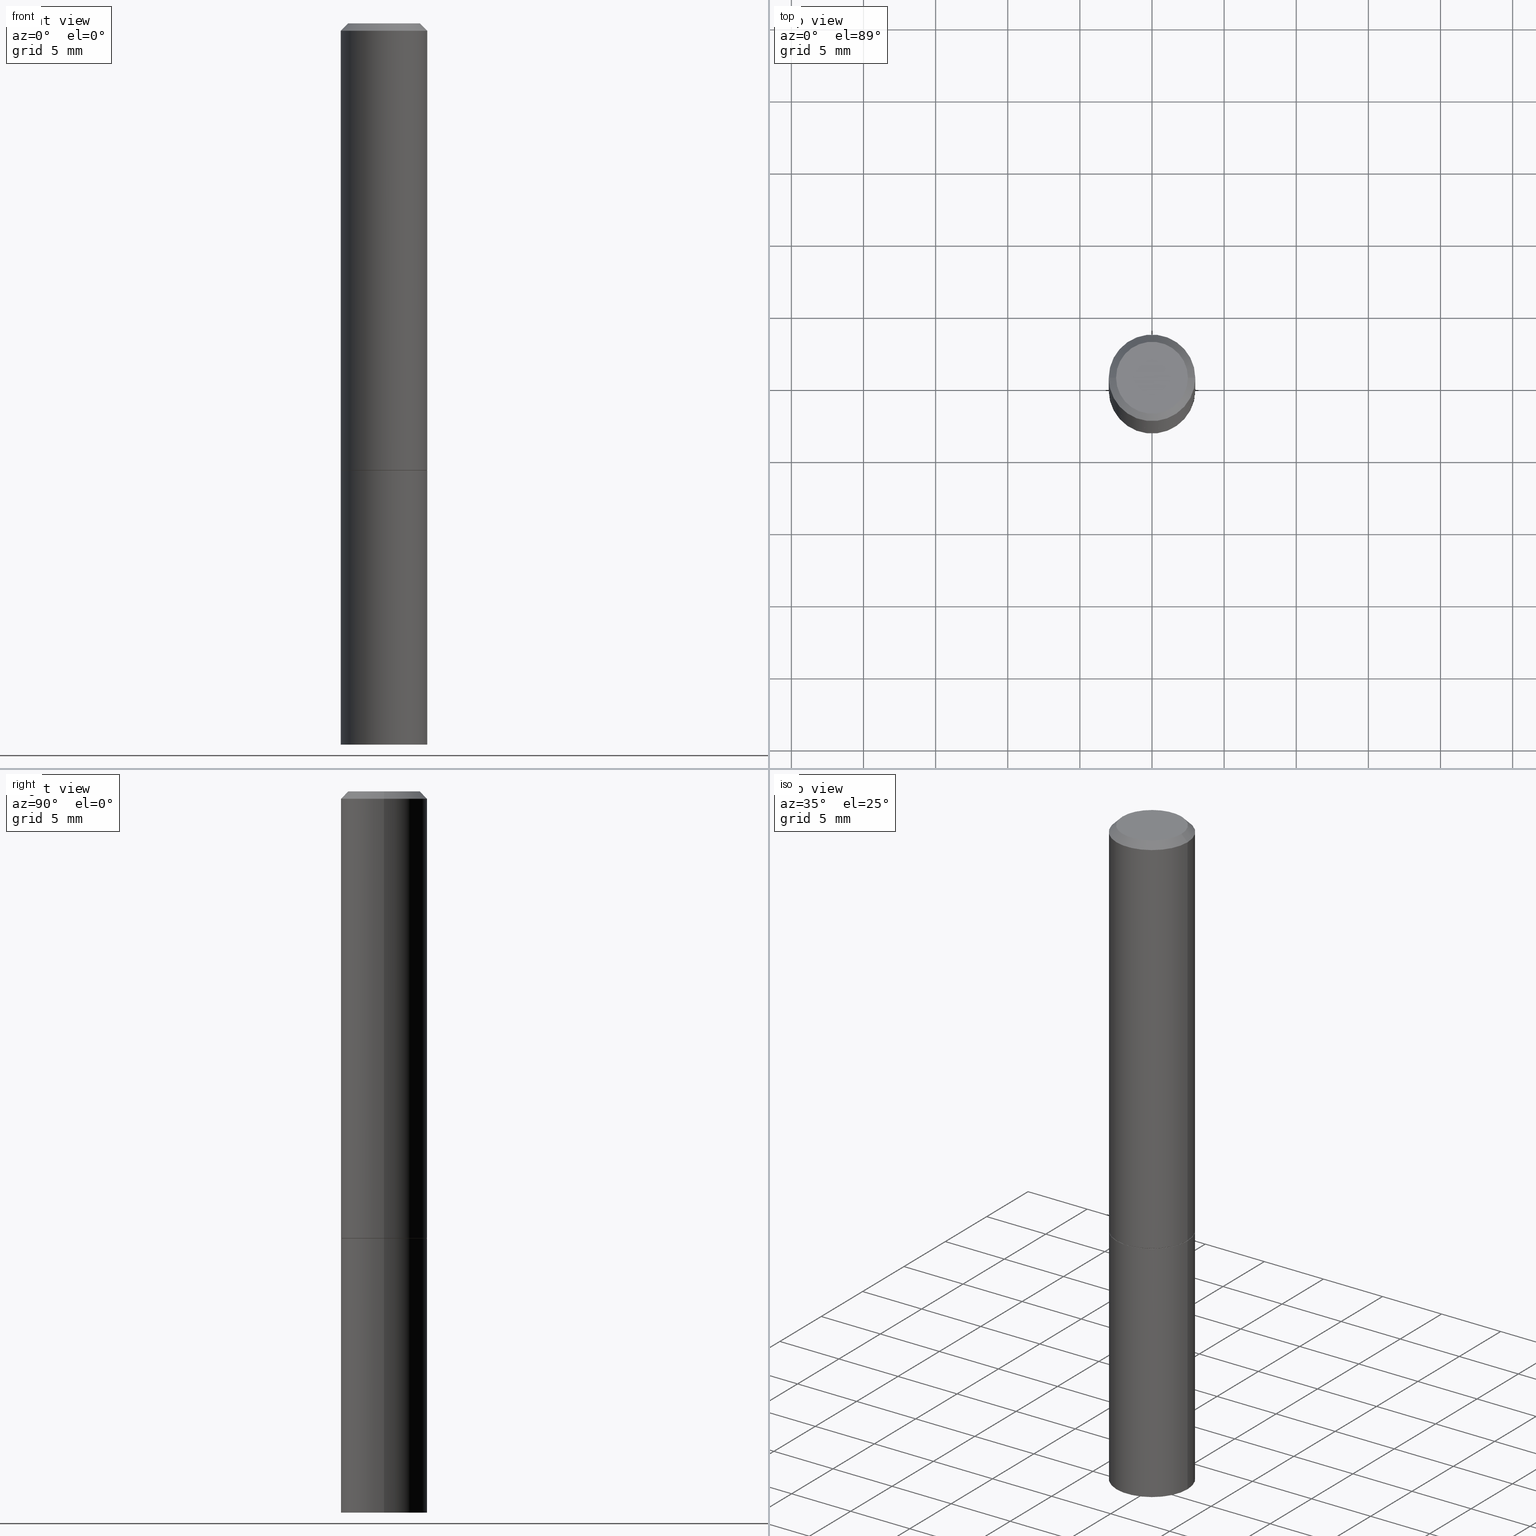
[diagram: canonical four-view strip — front | top / right | iso, engineering-drawing reading convention]
A machine part, canonical four-view strip (front | top / right | iso — engineering-drawing reading convention). The complete STEP part file that produces these views, byte-faithful:
ISO-10303-21;
HEADER;
FILE_DESCRIPTION (( 'STEP AP203' ),
    '1' );
FILE_NAME ('48637.STEP',
    '2024-02-28T12:44:47',
    ( '' ),
    ( '' ),
    'SwSTEP 2.0',
    'SolidWorks 2023',
    '' );
FILE_SCHEMA (( 'CONFIG_CONTROL_DESIGN' ));
ENDSEC;

DATA;
#1 = ORIENTED_EDGE ( 'NONE', *, *, #267, .F. ) ;
#2 = AXIS2_PLACEMENT_3D ( 'NONE', #141, #260, #59 ) ;
#3 = EDGE_CURVE ( 'NONE', #21, #10, #363, .T. ) ;
#4 = DIRECTION ( 'NONE',  ( 1.000000000000000000, -6.982962677686265133E-15, 0.000000000000000000 ) ) ;
#5 = EDGE_CURVE ( 'NONE', #256, #266, #314, .T. ) ;
#6 = AXIS2_PLACEMENT_3D ( 'NONE', #159, #365, #105 ) ;
#7 = LOCAL_TIME ( 7, 44, 47.00000000000000000, #345 ) ;
#8 = ORIENTED_EDGE ( 'NONE', *, *, #191, .F. ) ;
#9 = DATE_AND_TIME ( #97, #202 ) ;
#10 = VERTEX_POINT ( 'NONE', #301 ) ;
#11 = COORDINATED_UNIVERSAL_TIME_OFFSET ( 5, 0, .BEHIND. ) ;
#12 = LINE ( 'NONE', #241, #104 ) ;
#13 = ORIENTED_EDGE ( 'NONE', *, *, #193, .T. ) ;
#14 = CARTESIAN_POINT ( 'NONE',  ( 6.850286386810215676E-16, 0.09809999999999984011, -3.403800630954618031E-16 ) ) ;
#15 = AXIS2_PLACEMENT_3D ( 'NONE', #204, #240, #350 ) ;
#16 = DIRECTION ( 'NONE',  ( -2.445468806185136877E-29, 3.491481338843145188E-15, 1.000000000000000000 ) ) ;
#17 = CARTESIAN_POINT ( 'NONE',  ( -0.1180999999999999966, -4.728016023852716776E-15, -1.220499999999999918 ) ) ;
#18 = ORIENTED_EDGE ( 'NONE', *, *, #22, .F. ) ;
#19 = CARTESIAN_POINT ( 'NONE',  ( -0.1170999999999999958, -3.424008976134759437E-15, -1.220499999999999918 ) ) ;
#20 = CARTESIAN_POINT ( 'NONE',  ( 0.000000000000000000, 0.000000000000000000, 0.000000000000000000 ) ) ;
#21 = VERTEX_POINT ( 'NONE', #19 ) ;
#22 = EDGE_CURVE ( 'NONE', #298, #268, #299, .T. ) ;
#23 = CARTESIAN_POINT ( 'NONE',  ( 0.1180999999999998301, -8.800544403136797528E-16, -0.02000000000000003511 ) ) ;
#24 = FACE_OUTER_BOUND ( 'NONE', #226, .T. ) ;
#25 = CARTESIAN_POINT ( 'NONE',  ( 0.1180999999999999966, -7.697668907747479970E-15, -1.968500000000000139 ) ) ;
#26 = ORIENTED_EDGE ( 'NONE', *, *, #309, .F. ) ;
#27 = CYLINDRICAL_SURFACE ( 'NONE', #230, 0.1180999999999999966 ) ;
#28 = ORIENTED_EDGE ( 'NONE', *, *, #232, .T. ) ;
#29 = FACE_OUTER_BOUND ( 'NONE', #69, .T. ) ;
#30 = APPROVAL ( #360, 'UNSPECIFIED' ) ;
#31 = LOCAL_TIME ( 7, 44, 47.00000000000000000, #262 ) ;
#32 = ORIENTED_EDGE ( 'NONE', *, *, #193, .F. ) ;
#33 = EDGE_CURVE ( 'NONE', #287, #190, #247, .T. ) ;
#34 = ORIENTED_EDGE ( 'NONE', *, *, #3, .F. ) ;
#35 = PRODUCT_RELATED_PRODUCT_CATEGORY ( 'detail', '', ( #270 ) ) ;
#36 = DIRECTION ( 'NONE',  ( -2.445468806185136597E-29, 3.491481338843145583E-15, 1.000000000000000000 ) ) ;
#37 = FACE_OUTER_BOUND ( 'NONE', #79, .T. ) ;
#38 = DIRECTION ( 'NONE',  ( 1.000000000000000000, -6.982962677686266711E-15, 0.000000000000000000 ) ) ;
#39 = CC_DESIGN_DATE_AND_TIME_ASSIGNMENT ( #236, #116, ( #89 ) ) ;
#40 = PRODUCT_DEFINITION_SHAPE ( 'NONE', 'NONE',  #89 ) ;
#41 = FACE_OUTER_BOUND ( 'NONE', #196, .T. ) ;
#42 = CARTESIAN_POINT ( 'NONE',  ( 0.09809999999999984011, -7.765346469475328709E-16, 4.268512490105521927E-18 ) ) ;
#43 = VECTOR ( 'NONE', #55, 39.37007874015748143 ) ;
#44 = CONICAL_SURFACE ( 'NONE', #135, 0.1170999999999999958, 0.7853981633975507526 ) ;
#45 = DIRECTION ( 'NONE',  ( -1.000000000000000000, 6.982962677686265922E-15, -4.876176775795935793E-29 ) ) ;
#46 = ORIENTED_EDGE ( 'NONE', *, *, #254, .F. ) ;
#47 = DIRECTION ( 'NONE',  ( -2.445468806185136877E-29, 3.491481338843145188E-15, 1.000000000000000000 ) ) ;
#48 = CARTESIAN_POINT ( 'NONE',  ( 4.890937612370281041E-31, -6.982962677686302702E-17, -0.02000000000000003511 ) ) ;
#49 = SECURITY_CLASSIFICATION_LEVEL ( 'unclassified' ) ;
#50 = EDGE_CURVE ( 'NONE', #10, #21, #110, .T. ) ;
#51 = LINE ( 'NONE', #153, #43 ) ;
#52 = PRODUCT_DEFINITION_FORMATION_WITH_SPECIFIED_SOURCE ( 'ANY', '', #270, .NOT_KNOWN. ) ;
#53 = CARTESIAN_POINT ( 'NONE',  ( 2.984694677948959472E-29, -4.261352974058059028E-15, -1.220499999999999918 ) ) ;
#54 = ADVANCED_FACE ( 'NONE', ( #24 ), #273, .F. ) ;
#55 = DIRECTION ( 'NONE',  ( 0.7071067811866199593, -2.468850131083015945E-15, 0.7071067811864750752 ) ) ;
#56 = DIRECTION ( 'NONE',  ( -0.7071067811865466846, 2.468850131082247989E-15, -0.7071067811865483499 ) ) ;
#57 = CC_DESIGN_APPROVAL ( #30, ( #89 ) ) ;
#58 = VERTEX_POINT ( 'NONE', #42 ) ;
#59 = DIRECTION ( 'NONE',  ( 1.000000000000000000, -6.982962677686269077E-15, 0.000000000000000000 ) ) ;
#60 = CALENDAR_DATE ( 2024, 28, 2 ) ;
#61 = DIMENSIONAL_EXPONENTS ( 1.000000000000000000, 0.000000000000000000, 0.000000000000000000, 0.000000000000000000, 0.000000000000000000, 0.000000000000000000, 0.000000000000000000 ) ;
#62 = ORIENTED_EDGE ( 'NONE', *, *, #309, .T. ) ;
#63 = ORIENTED_EDGE ( 'NONE', *, *, #267, .T. ) ;
#64 = ADVANCED_FACE ( 'NONE', ( #148 ), #98, .T. ) ;
#65 = EDGE_LOOP ( 'NONE', ( #320, #62, #200, #32 ) ) ;
#66 = ORIENTED_EDGE ( 'NONE', *, *, #319, .T. ) ;
#67 = LINE ( 'NONE', #102, #285 ) ;
#68 = CARTESIAN_POINT ( 'NONE',  ( 0.1180999999999999966, -5.086040866292807290E-15, -1.220499999999999918 ) ) ;
#69 = EDGE_LOOP ( 'NONE', ( #1, #166, #223, #46 ) ) ;
#70 = EDGE_LOOP ( 'NONE', ( #259, #63, #18, #180 ) ) ;
#71 = DIRECTION ( 'NONE',  ( 1.000000000000000000, -6.982962677686265133E-15, 0.000000000000000000 ) ) ;
#72 = DIRECTION ( 'NONE',  ( 1.000000000000000000, -6.982962677686266711E-15, 4.876176775795935793E-29 ) ) ;
#73 = CARTESIAN_POINT ( 'NONE',  ( 0.1180999999999999966, -5.082549384953964283E-15, -1.219500000000000028 ) ) ;
#74 = PERSON_AND_ORGANIZATION ( #194, #177 ) ;
#75 = DIRECTION ( 'NONE',  ( 2.438088387897960049E-29, -3.491481338843145188E-15, -1.000000000000000000 ) ) ;
#76 = VECTOR ( 'NONE', #302, 39.37007874015748143 ) ;
#77 = EDGE_CURVE ( 'NONE', #256, #138, #184, .T. ) ;
#78 = COORDINATED_UNIVERSAL_TIME_OFFSET ( 5, 0, .BEHIND. ) ;
#79 = EDGE_LOOP ( 'NONE', ( #151, #323, #317, #13 ) ) ;
#80 = AXIS2_PLACEMENT_3D ( 'NONE', #361, #359, #45 ) ;
#81 = APPROVAL_PERSON_ORGANIZATION ( #74, #342, #308 ) ;
#82 = MANIFOLD_SOLID_BREP ( 'Body-Move/Copy2[2]', #295 ) ;
#83 = DIRECTION ( 'NONE',  ( 1.000000000000000000, -6.982962677686265922E-15, 4.876176775795935793E-29 ) ) ;
#84 = AXIS2_PLACEMENT_3D ( 'NONE', #152, #334, #72 ) ;
#85 = ORIENTED_EDGE ( 'NONE', *, *, #5, .F. ) ;
#86 = MANIFOLD_SOLID_BREP ( 'Body-Move/Copy2[1]', #103 ) ;
#87 = CYLINDRICAL_SURFACE ( 'NONE', #15, 0.1180999999999999966 ) ;
#88 = APPROVAL_ROLE ( '' ) ;
#89 = PRODUCT_DEFINITION ( 'UNKNOWN', '', #52, #313 ) ;
#90 = DIRECTION ( 'NONE',  ( -2.445468806185136597E-29, 3.491481338843145583E-15, 1.000000000000000000 ) ) ;
#91 = CIRCLE ( 'NONE', #351, 0.09809999999999984011 ) ;
#92 = DIRECTION ( 'NONE',  ( -2.445468806185136877E-29, 3.491481338843145188E-15, 1.000000000000000000 ) ) ;
#93 = CARTESIAN_POINT ( 'NONE',  ( 2.984694677948958911E-29, -4.261352974058059028E-15, -1.220499999999999918 ) ) ;
#94 = EDGE_CURVE ( 'NONE', #138, #113, #134, .T. ) ;
#95 = APPLICATION_PROTOCOL_DEFINITION ( 'international standard', 'config_control_design', 1994, #252 ) ;
#96 = DIRECTION ( 'NONE',  ( -2.445468806185136597E-29, 3.491481338843145583E-15, 1.000000000000000000 ) ) ;
#97 = CALENDAR_DATE ( 2024, 28, 2 ) ;
#98 = CYLINDRICAL_SURFACE ( 'NONE', #84, 0.1180999999999999134 ) ;
#99 = ORIENTED_EDGE ( 'NONE', *, *, #50, .F. ) ;
#100 = CC_DESIGN_PERSON_AND_ORGANIZATION_ASSIGNMENT ( #293, #364, ( #89 ) ) ;
#101 = ADVANCED_FACE ( 'NONE', ( #37 ), #322, .T. ) ;
#102 = CARTESIAN_POINT ( 'NONE',  ( -0.1180999999999999134, 8.391509709326777040E-16, -5.809262341591039580E-30 ) ) ;
#103 = CLOSED_SHELL ( 'NONE', ( #222, #326, #54, #344 ) ) ;
#104 = VECTOR ( 'NONE', #92, 39.37007874015748143 ) ;
#105 = DIRECTION ( 'NONE',  ( 1.000000000000000000, -6.982962677686266711E-15, 0.000000000000000000 ) ) ;
#106 = DIRECTION ( 'NONE',  ( 1.000000000000000000, -6.982962677686266711E-15, 4.876195163481339890E-29 ) ) ;
#107 = ADVANCED_FACE ( 'NONE', ( #125 ), #167, .T. ) ;
#108 = ORIENTED_EDGE ( 'NONE', *, *, #311, .F. ) ;
#109 = CARTESIAN_POINT ( 'NONE',  ( -0.1180999999999998301, 7.548582654578837811E-16, -0.02000000000000003511 ) ) ;
#110 = CIRCLE ( 'NONE', #205, 0.1170999999999999958 ) ;
#111 = AXIS2_PLACEMENT_3D ( 'NONE', #248, #130, #219 ) ;
#112 = EDGE_LOOP ( 'NONE', ( #354, #66 ) ) ;
#113 = VERTEX_POINT ( 'NONE', #187 ) ;
#114 = FACE_OUTER_BOUND ( 'NONE', #139, .T. ) ;
#115 = ORIENTED_EDGE ( 'NONE', *, *, #22, .T. ) ;
#116 = DATE_TIME_ROLE ( 'creation_date' ) ;
#117 = APPROVAL ( #189, 'UNSPECIFIED' ) ;
#118 = ADVANCED_BREP_SHAPE_REPRESENTATION ( '48637', ( #86, #82, #324 ), #156 ) ;
#119 = DIRECTION ( 'NONE',  ( 2.445468806185136597E-29, -3.491481338843145583E-15, -1.000000000000000000 ) ) ;
#120 = SHAPE_DEFINITION_REPRESENTATION ( #40, #118 ) ;
#121 = CARTESIAN_POINT ( 'NONE',  ( 0.1180999999999999966, -8.246878922347480654E-16, 5.758764772215000440E-30 ) ) ;
#122 = AXIS2_PLACEMENT_3D ( 'NONE', #176, #90, #207 ) ;
#123 = VECTOR ( 'NONE', #56, 39.37007874015748143 ) ;
#124 = DIRECTION ( 'NONE',  ( 2.438088387897960049E-29, -3.491481338843145188E-15, -1.000000000000000000 ) ) ;
#125 = FACE_OUTER_BOUND ( 'NONE', #349, .T. ) ;
#126 = DIRECTION ( 'NONE',  ( 0.7071067811865466846, -7.319954787623252890E-15, -0.7071067811865483499 ) ) ;
#127 = AXIS2_PLACEMENT_3D ( 'NONE', #358, #333, #213 ) ;
#128 = DIRECTION ( 'NONE',  ( 0.000000000000000000, 0.000000000000000000, 1.000000000000000000 ) ) ;
#129 = CC_DESIGN_SECURITY_CLASSIFICATION ( #258, ( #52 ) ) ;
#130 = DIRECTION ( 'NONE',  ( -2.445468806185136597E-29, 3.491481338843145583E-15, 1.000000000000000000 ) ) ;
#131 = CARTESIAN_POINT ( 'NONE',  ( 4.890937612370281041E-31, -6.982962677686302702E-17, -0.02000000000000003511 ) ) ;
#132 = CALENDAR_DATE ( 2024, 28, 2 ) ;
#133 = ORIENTED_EDGE ( 'NONE', *, *, #261, .F. ) ;
#134 = CIRCLE ( 'NONE', #265, 0.1180999999999998301 ) ;
#135 = AXIS2_PLACEMENT_3D ( 'NONE', #343, #36, #290 ) ;
#136 = APPROVAL_DATE_TIME ( #312, #342 ) ;
#137 = ORIENTED_EDGE ( 'NONE', *, *, #319, .F. ) ;
#138 = VERTEX_POINT ( 'NONE', #321 ) ;
#139 = EDGE_LOOP ( 'NONE', ( #306, #163, #85, #8 ) ) ;
#140 = CARTESIAN_POINT ( 'NONE',  ( 2.982249209142773869E-29, -4.257861492719216809E-15, -1.219500000000000028 ) ) ;
#141 = CARTESIAN_POINT ( 'NONE',  ( 2.984694677948958911E-29, -4.261352974058059028E-15, -1.220499999999999918 ) ) ;
#142 = ADVANCED_FACE ( 'NONE', ( #41 ), #300, .T. ) ;
#143 = DIRECTION ( 'NONE',  ( -2.445468806185136597E-29, 3.491481338843145583E-15, 1.000000000000000000 ) ) ;
#144 =( NAMED_UNIT ( * ) SI_UNIT ( $, .STERADIAN. ) SOLID_ANGLE_UNIT ( ) );
#145 = LOCAL_TIME ( 7, 44, 47.00000000000000000, #355 ) ;
#146 = VECTOR ( 'NONE', #188, 39.37007874015748143 ) ;
#147 = PERSON_AND_ORGANIZATION_ROLE ( 'design_owner' ) ;
#148 = FACE_OUTER_BOUND ( 'NONE', #65, .T. ) ;
#149 = AXIS2_PLACEMENT_3D ( 'NONE', #158, #75, #160 ) ;
#150 = EDGE_LOOP ( 'NONE', ( #250, #291 ) ) ;
#151 = ORIENTED_EDGE ( 'NONE', *, *, #172, .F. ) ;
#152 = CARTESIAN_POINT ( 'NONE',  ( 0.000000000000000000, 0.000000000000000000, 0.000000000000000000 ) ) ;
#153 = CARTESIAN_POINT ( 'NONE',  ( 0.1170999999999999958, -5.079057903615120487E-15, -1.220499999999999918 ) ) ;
#154 = VECTOR ( 'NONE', #126, 39.37007874015748143 ) ;
#155 = CC_DESIGN_PERSON_AND_ORGANIZATION_ASSIGNMENT ( #157, #147, ( #270 ) ) ;
#156 =( GEOMETRIC_REPRESENTATION_CONTEXT ( 3 ) GLOBAL_UNCERTAINTY_ASSIGNED_CONTEXT ( ( #231 ) ) GLOBAL_UNIT_ASSIGNED_CONTEXT ( ( #307, #289, #144 ) ) REPRESENTATION_CONTEXT ( 'NONE', 'WORKASPACE' ) );
#157 = PERSON_AND_ORGANIZATION ( #194, #177 ) ;
#158 = CARTESIAN_POINT ( 'NONE',  ( 8.246878922347960873E-16, 0.1180999999999931133, -1.968500000000000583 ) ) ;
#159 = CARTESIAN_POINT ( 'NONE',  ( 4.890937612370281041E-31, -6.982962677686302702E-17, -0.02000000000000003511 ) ) ;
#160 = DIRECTION ( 'NONE',  ( -1.000000000000000000, 6.982962677686265922E-15, -4.876176775795935793E-29 ) ) ;
#161 = DIRECTION ( 'NONE',  ( -2.445468806185136597E-29, 3.491481338843145583E-15, 1.000000000000000000 ) ) ;
#162 = DIRECTION ( 'NONE',  ( -2.445468806185136597E-29, 3.491481338843145583E-15, 1.000000000000000000 ) ) ;
#163 = ORIENTED_EDGE ( 'NONE', *, *, #261, .T. ) ;
#164 = PLANE ( 'NONE',  #347 ) ;
#165 = EDGE_CURVE ( 'NONE', #190, #298, #297, .T. ) ;
#166 = ORIENTED_EDGE ( 'NONE', *, *, #33, .T. ) ;
#167 = CONICAL_SURFACE ( 'NONE', #127, 0.1180999999999998301, 0.7853981633974471688 ) ;
#168 = ADVANCED_FACE ( 'NONE', ( #244 ), #175, .T. ) ;
#169 = CARTESIAN_POINT ( 'NONE',  ( 2.982249209142773869E-29, -4.257861492719216809E-15, -1.219500000000000028 ) ) ;
#170 = PERSON_AND_ORGANIZATION ( #194, #177 ) ;
#171 = CARTESIAN_POINT ( 'NONE',  ( -0.1180999999999999966, -4.728016023852716776E-15, -1.968500000000000139 ) ) ;
#172 = EDGE_CURVE ( 'NONE', #58, #138, #336, .T. ) ;
#173 = DIRECTION ( 'NONE',  ( -2.438088387897960049E-29, 3.491481338843145188E-15, 1.000000000000000000 ) ) ;
#174 = LENGTH_MEASURE_WITH_UNIT ( LENGTH_MEASURE( 0.02539999999999999897 ), #224 );
#175 = CONICAL_SURFACE ( 'NONE', #228, 0.1170999999999999958, 0.7853981633975507526 ) ;
#176 = CARTESIAN_POINT ( 'NONE',  ( 0.000000000000000000, 0.000000000000000000, 0.000000000000000000 ) ) ;
#177 = ORGANIZATION ( 'UNSPECIFIED', 'UNSPECIFIED', '' ) ;
#178 = CC_DESIGN_PERSON_AND_ORGANIZATION_ASSIGNMENT ( #246, #362, ( #52 ) ) ;
#179 = DIRECTION ( 'NONE',  ( 1.000000000000000000, -6.982962677686269077E-15, 0.000000000000000000 ) ) ;
#180 = ORIENTED_EDGE ( 'NONE', *, *, #165, .F. ) ;
#181 = CC_DESIGN_DATE_AND_TIME_ASSIGNMENT ( #9, #303, ( #258 ) ) ;
#182 = AXIS2_PLACEMENT_3D ( 'NONE', #169, #264, #4 ) ;
#183 = PERSON_AND_ORGANIZATION ( #194, #177 ) ;
#184 = LINE ( 'NONE', #277, #146 ) ;
#185 = APPROVAL_PERSON_ORGANIZATION ( #216, #117, #88 ) ;
#186 = CALENDAR_DATE ( 2024, 28, 2 ) ;
#187 = CARTESIAN_POINT ( 'NONE',  ( -0.1180999999999998301, 7.548582654578837811E-16, -0.02000000000000003511 ) ) ;
#188 = DIRECTION ( 'NONE',  ( -2.445468806185136877E-29, 3.491481338843145188E-15, 1.000000000000000000 ) ) ;
#189 = APPROVAL_STATUS ( 'not_yet_approved' ) ;
#190 = VERTEX_POINT ( 'NONE', #25 ) ;
#191 = EDGE_CURVE ( 'NONE', #10, #256, #51, .T. ) ;
#192 = DIRECTION ( 'NONE',  ( -2.445468806185136597E-29, 3.491481338843145583E-15, 1.000000000000000000 ) ) ;
#193 = EDGE_CURVE ( 'NONE', #113, #138, #220, .T. ) ;
#194 = PERSON ( 'UNSPECIFIED', 'UNSPECIFIED', 'UNSPECIFIED', ('UNSPECIFIED'), ('UNSPECIFIED'), ('UNSPECIFIED') ) ;
#195 = EDGE_CURVE ( 'NONE', #296, #58, #91, .T. ) ;
#196 = EDGE_LOOP ( 'NONE', ( #276, #28, #332, #356 ) ) ;
#197 = VECTOR ( 'NONE', #16, 39.37007874015748143 ) ;
#198 = CARTESIAN_POINT ( 'NONE',  ( -1.043851414335219820E-46, 1.490343170380447200E-32, 4.268512490100411279E-18 ) ) ;
#199 = AXIS2_PLACEMENT_3D ( 'NONE', #198, #162, #340 ) ;
#200 = ORIENTED_EDGE ( 'NONE', *, *, #77, .T. ) ;
#201 = DIRECTION ( 'NONE',  ( -1.000000000000000000, 6.982962677686265922E-15, -4.876176775795935793E-29 ) ) ;
#202 = LOCAL_TIME ( 7, 44, 47.00000000000000000, #11 ) ;
#203 = DATE_AND_TIME ( #60, #7 ) ;
#204 = CARTESIAN_POINT ( 'NONE',  ( 0.000000000000000000, 0.000000000000000000, 0.000000000000000000 ) ) ;
#205 = AXIS2_PLACEMENT_3D ( 'NONE', #93, #96, #179 ) ;
#206 = LOCAL_TIME ( 7, 44, 47.00000000000000000, #78 ) ;
#207 = DIRECTION ( 'NONE',  ( 1.000000000000000000, -6.982962677686266711E-15, 4.876176775795935793E-29 ) ) ;
#208 = APPLICATION_CONTEXT ( 'configuration controlled 3d designs of mechanical parts and assemblies' ) ;
#209 = CIRCLE ( 'NONE', #111, 0.1180999999999999966 ) ;
#210 = FACE_OUTER_BOUND ( 'NONE', #112, .T. ) ;
#211 = CARTESIAN_POINT ( 'NONE',  ( 4.813905344975441835E-29, -6.872981015512731707E-15, -1.968500000000000139 ) ) ;
#212 = DIRECTION ( 'NONE',  ( -2.445468806185136597E-29, 3.491481338843145583E-15, 1.000000000000000000 ) ) ;
#213 = DIRECTION ( 'NONE',  ( -1.000000000000000000, 6.982962677686266711E-15, 0.000000000000000000 ) ) ;
#214 = CARTESIAN_POINT ( 'NONE',  ( 2.984694677948959472E-29, -4.261352974058059028E-15, -1.220499999999999918 ) ) ;
#215 = PERSON_AND_ORGANIZATION_ROLE ( 'classification_officer' ) ;
#216 = PERSON_AND_ORGANIZATION ( #194, #177 ) ;
#217 = ADVANCED_FACE ( 'NONE', ( #227 ), #164, .F. ) ;
#218 = DIRECTION ( 'NONE',  ( -2.445468806185136597E-29, 3.491481338843145583E-15, 1.000000000000000000 ) ) ;
#219 = DIRECTION ( 'NONE',  ( 1.000000000000000000, -6.982962677686265133E-15, 0.000000000000000000 ) ) ;
#220 = CIRCLE ( 'NONE', #6, 0.1180999999999998301 ) ;
#221 = CIRCLE ( 'NONE', #199, 0.09809999999999984011 ) ;
#222 = ADVANCED_FACE ( 'NONE', ( #238 ), #87, .T. ) ;
#223 = ORIENTED_EDGE ( 'NONE', *, *, #165, .T. ) ;
#224 =( LENGTH_UNIT ( ) NAMED_UNIT ( * ) SI_UNIT ( $, .METRE. ) );
#225 = CARTESIAN_POINT ( 'NONE',  ( -1.043851414335219820E-46, 1.490343170380447200E-32, 4.268512490100411279E-18 ) ) ;
#226 = EDGE_LOOP ( 'NONE', ( #115, #346 ) ) ;
#227 = FACE_OUTER_BOUND ( 'NONE', #263, .T. ) ;
#228 = AXIS2_PLACEMENT_3D ( 'NONE', #357, #212, #275 ) ;
#229 = CARTESIAN_POINT ( 'NONE',  ( 0.000000000000000000, 0.000000000000000000, 0.000000000000000000 ) ) ;
#230 = AXIS2_PLACEMENT_3D ( 'NONE', #229, #192, #284 ) ;
#231 = UNCERTAINTY_MEASURE_WITH_UNIT (LENGTH_MEASURE( 1.000000000000000082E-05 ), #307, 'distance_accuracy_value', 'NONE');
#232 = EDGE_CURVE ( 'NONE', #266, #113, #67, .T. ) ;
#233 = PERSON_AND_ORGANIZATION_ROLE ( 'creator' ) ;
#234 = APPROVAL_ROLE ( '' ) ;
#235 = EDGE_CURVE ( 'NONE', #190, #287, #209, .T. ) ;
#236 = DATE_AND_TIME ( #132, #206 ) ;
#237 = DATE_AND_TIME ( #292, #145 ) ;
#238 = FACE_OUTER_BOUND ( 'NONE', #70, .T. ) ;
#239 = APPROVAL_DATE_TIME ( #237, #117 ) ;
#240 = DIRECTION ( 'NONE',  ( -2.445468806185136597E-29, 3.491481338843145583E-15, 1.000000000000000000 ) ) ;
#241 = CARTESIAN_POINT ( 'NONE',  ( -0.1180999999999999966, 8.391509709326782957E-16, -5.809262341591043784E-30 ) ) ;
#242 = CC_DESIGN_APPROVAL ( #117, ( #258 ) ) ;
#243 = ORIENTED_EDGE ( 'NONE', *, *, #191, .T. ) ;
#244 = FACE_OUTER_BOUND ( 'NONE', #318, .T. ) ;
#245 = DIRECTION ( 'NONE',  ( 1.000000000000000000, -6.982962677686265133E-15, 0.000000000000000000 ) ) ;
#246 = PERSON_AND_ORGANIZATION ( #194, #177 ) ;
#247 = CIRCLE ( 'NONE', #305, 0.1180999999999999966 ) ;
#248 = CARTESIAN_POINT ( 'NONE',  ( 4.813905344975441835E-29, -6.872981015512731707E-15, -1.968500000000000139 ) ) ;
#249 = AXIS2_PLACEMENT_3D ( 'NONE', #53, #335, #71 ) ;
#250 = ORIENTED_EDGE ( 'NONE', *, *, #235, .F. ) ;
#251 = CC_DESIGN_PERSON_AND_ORGANIZATION_ASSIGNMENT ( #331, #215, ( #258 ) ) ;
#252 = APPLICATION_CONTEXT ( 'configuration controlled 3d designs of mechanical parts and assemblies' ) ;
#253 = LINE ( 'NONE', #109, #123 ) ;
#254 = EDGE_CURVE ( 'NONE', #268, #298, #315, .T. ) ;
#255 = PLANE ( 'NONE',  #149 ) ;
#256 = VERTEX_POINT ( 'NONE', #73 ) ;
#257 = AXIS2_PLACEMENT_3D ( 'NONE', #131, #119, #272 ) ;
#258 = SECURITY_CLASSIFICATION ( '', '', #49 ) ;
#259 = ORIENTED_EDGE ( 'NONE', *, *, #235, .T. ) ;
#260 = DIRECTION ( 'NONE',  ( -2.445468806185136597E-29, 3.491481338843145583E-15, 1.000000000000000000 ) ) ;
#261 = EDGE_CURVE ( 'NONE', #21, #266, #271, .T. ) ;
#262 = COORDINATED_UNIVERSAL_TIME_OFFSET ( 5, 0, .BEHIND. ) ;
#263 = EDGE_LOOP ( 'NONE', ( #99, #34 ) ) ;
#264 = DIRECTION ( 'NONE',  ( -2.445468806185136597E-29, 3.491481338843145583E-15, 1.000000000000000000 ) ) ;
#265 = AXIS2_PLACEMENT_3D ( 'NONE', #48, #143, #38 ) ;
#266 = VERTEX_POINT ( 'NONE', #325 ) ;
#267 = EDGE_CURVE ( 'NONE', #287, #268, #12, .T. ) ;
#268 = VERTEX_POINT ( 'NONE', #17 ) ;
#269 = CARTESIAN_POINT ( 'NONE',  ( -0.1170999999999999958, -3.429307430482981050E-15, -1.220499999999999918 ) ) ;
#270 = PRODUCT ( '48637', '48637', '', ( #339 ) ) ;
#271 = LINE ( 'NONE', #269, #76 ) ;
#272 = DIRECTION ( 'NONE',  ( -1.000000000000000000, 6.982962677686266711E-15, 0.000000000000000000 ) ) ;
#273 = PLANE ( 'NONE',  #80 ) ;
#274 = ADVANCED_FACE ( 'NONE', ( #210 ), #353, .F. ) ;
#275 = DIRECTION ( 'NONE',  ( 1.000000000000000000, -6.982962677686269077E-15, 0.000000000000000000 ) ) ;
#276 = ORIENTED_EDGE ( 'NONE', *, *, #5, .T. ) ;
#277 = CARTESIAN_POINT ( 'NONE',  ( 0.1180999999999999134, -8.246878922347474737E-16, 5.758764772214996237E-30 ) ) ;
#278 = DIRECTION ( 'NONE',  ( -2.445468806185136597E-29, 3.491481338843145583E-15, 1.000000000000000000 ) ) ;
#279 = AXIS2_PLACEMENT_3D ( 'NONE', #214, #278, #245 ) ;
#280 = AXIS2_PLACEMENT_3D ( 'NONE', #14, #124, #201 ) ;
#281 = CC_DESIGN_PERSON_AND_ORGANIZATION_ASSIGNMENT ( #170, #233, ( #52 ) ) ;
#282 = APPROVAL_STATUS ( 'not_yet_approved' ) ;
#283 = ADVANCED_FACE ( 'NONE', ( #114 ), #44, .T. ) ;
#284 = DIRECTION ( 'NONE',  ( 1.000000000000000000, -6.982962677686266711E-15, 4.876176775795936353E-29 ) ) ;
#285 = VECTOR ( 'NONE', #47, 39.37007874015748143 ) ;
#286 = FACE_OUTER_BOUND ( 'NONE', #150, .T. ) ;
#287 = VERTEX_POINT ( 'NONE', #171 ) ;
#288 = CIRCLE ( 'NONE', #341, 0.1180999999999999966 ) ;
#289 =( NAMED_UNIT ( * ) PLANE_ANGLE_UNIT ( ) SI_UNIT ( $, .RADIAN. ) );
#290 = DIRECTION ( 'NONE',  ( 1.000000000000000000, -6.982962677686269077E-15, 0.000000000000000000 ) ) ;
#291 = ORIENTED_EDGE ( 'NONE', *, *, #33, .F. ) ;
#292 = CALENDAR_DATE ( 2024, 28, 2 ) ;
#293 = PERSON_AND_ORGANIZATION ( #194, #177 ) ;
#294 = ORIENTED_EDGE ( 'NONE', *, *, #172, .T. ) ;
#295 = CLOSED_SHELL ( 'NONE', ( #283, #142, #107, #101, #64, #168, #217, #274 ) ) ;
#296 = VERTEX_POINT ( 'NONE', #328 ) ;
#297 = LINE ( 'NONE', #121, #197 ) ;
#298 = VERTEX_POINT ( 'NONE', #68 ) ;
#299 = CIRCLE ( 'NONE', #279, 0.1180999999999999966 ) ;
#300 = CYLINDRICAL_SURFACE ( 'NONE', #122, 0.1180999999999999134 ) ;
#301 = CARTESIAN_POINT ( 'NONE',  ( 0.1170999999999999958, -5.079057903615120487E-15, -1.220499999999999918 ) ) ;
#302 = DIRECTION ( 'NONE',  ( -0.7071067811866199593, 7.493145998870616062E-15, 0.7071067811864750752 ) ) ;
#303 = DATE_TIME_ROLE ( 'classification_date' ) ;
#304 = CARTESIAN_POINT ( 'NONE',  ( 2.984694677948959472E-29, -4.261352974058059028E-15, -1.220499999999999918 ) ) ;
#305 = AXIS2_PLACEMENT_3D ( 'NONE', #211, #352, #329 ) ;
#306 = ORIENTED_EDGE ( 'NONE', *, *, #50, .T. ) ;
#307 =( CONVERSION_BASED_UNIT ( 'INCH', #174 ) LENGTH_UNIT ( ) NAMED_UNIT ( #61 ) );
#308 = APPROVAL_ROLE ( '' ) ;
#309 = EDGE_CURVE ( 'NONE', #266, #256, #288, .T. ) ;
#310 = DIRECTION ( 'NONE',  ( 1.000000000000000000, -6.982962677686265133E-15, 0.000000000000000000 ) ) ;
#311 = EDGE_CURVE ( 'NONE', #296, #113, #253, .T. ) ;
#312 = DATE_AND_TIME ( #186, #31 ) ;
#313 = DESIGN_CONTEXT ( 'detailed design', #252, 'design' ) ;
#314 = CIRCLE ( 'NONE', #182, 0.1180999999999999966 ) ;
#315 = CIRCLE ( 'NONE', #249, 0.1180999999999999966 ) ;
#316 = APPROVAL_DATE_TIME ( #203, #30 ) ;
#317 = ORIENTED_EDGE ( 'NONE', *, *, #311, .T. ) ;
#318 = EDGE_LOOP ( 'NONE', ( #133, #327, #243, #26 ) ) ;
#319 = EDGE_CURVE ( 'NONE', #58, #296, #221, .T. ) ;
#320 = ORIENTED_EDGE ( 'NONE', *, *, #232, .F. ) ;
#321 = CARTESIAN_POINT ( 'NONE',  ( 0.1180999999999998301, -8.800544403136797528E-16, -0.02000000000000003511 ) ) ;
#322 = CONICAL_SURFACE ( 'NONE', #257, 0.1180999999999998301, 0.7853981633974471688 ) ;
#323 = ORIENTED_EDGE ( 'NONE', *, *, #195, .F. ) ;
#324 = AXIS2_PLACEMENT_3D ( 'NONE', #20, #128, #338 ) ;
#325 = CARTESIAN_POINT ( 'NONE',  ( -0.1180999999999999966, -1.324694588815359885E-15, -1.219500000000000028 ) ) ;
#326 = ADVANCED_FACE ( 'NONE', ( #286 ), #255, .T. ) ;
#327 = ORIENTED_EDGE ( 'NONE', *, *, #3, .T. ) ;
#328 = CARTESIAN_POINT ( 'NONE',  ( -0.09809999999999984011, 7.199434520694527237E-16, 4.268512490095498617E-18 ) ) ;
#329 = DIRECTION ( 'NONE',  ( 1.000000000000000000, -6.982962677686265133E-15, 0.000000000000000000 ) ) ;
#330 = APPLICATION_PROTOCOL_DEFINITION ( 'international standard', 'config_control_design', 1994, #208 ) ;
#331 = PERSON_AND_ORGANIZATION ( #194, #177 ) ;
#332 = ORIENTED_EDGE ( 'NONE', *, *, #94, .F. ) ;
#333 = DIRECTION ( 'NONE',  ( 2.445468806185136597E-29, -3.491481338843145583E-15, -1.000000000000000000 ) ) ;
#334 = DIRECTION ( 'NONE',  ( -2.445468806185136597E-29, 3.491481338843145583E-15, 1.000000000000000000 ) ) ;
#335 = DIRECTION ( 'NONE',  ( -2.445468806185136597E-29, 3.491481338843145583E-15, 1.000000000000000000 ) ) ;
#336 = LINE ( 'NONE', #23, #154 ) ;
#337 = ORIENTED_EDGE ( 'NONE', *, *, #94, .T. ) ;
#338 = DIRECTION ( 'NONE',  ( 1.000000000000000000, 0.000000000000000000, 0.000000000000000000 ) ) ;
#339 = MECHANICAL_CONTEXT ( 'NONE', #208, 'mechanical' ) ;
#340 = DIRECTION ( 'NONE',  ( 1.000000000000000000, -6.982962677686266711E-15, 4.876195163481339890E-29 ) ) ;
#341 = AXIS2_PLACEMENT_3D ( 'NONE', #140, #218, #310 ) ;
#342 = APPROVAL ( #282, 'UNSPECIFIED' ) ;
#343 = CARTESIAN_POINT ( 'NONE',  ( 2.984694677948958911E-29, -4.261352974058059028E-15, -1.220499999999999918 ) ) ;
#344 = ADVANCED_FACE ( 'NONE', ( #29 ), #27, .T. ) ;
#345 = COORDINATED_UNIVERSAL_TIME_OFFSET ( 5, 0, .BEHIND. ) ;
#346 = ORIENTED_EDGE ( 'NONE', *, *, #254, .T. ) ;
#347 = AXIS2_PLACEMENT_3D ( 'NONE', #304, #173, #83 ) ;
#348 = APPROVAL_PERSON_ORGANIZATION ( #183, #30, #234 ) ;
#349 = EDGE_LOOP ( 'NONE', ( #137, #294, #337, #108 ) ) ;
#350 = DIRECTION ( 'NONE',  ( 1.000000000000000000, -6.982962677686266711E-15, 4.876176775795936353E-29 ) ) ;
#351 = AXIS2_PLACEMENT_3D ( 'NONE', #225, #161, #106 ) ;
#352 = DIRECTION ( 'NONE',  ( -2.445468806185136597E-29, 3.491481338843145583E-15, 1.000000000000000000 ) ) ;
#353 = PLANE ( 'NONE',  #280 ) ;
#354 = ORIENTED_EDGE ( 'NONE', *, *, #195, .T. ) ;
#355 = COORDINATED_UNIVERSAL_TIME_OFFSET ( 5, 0, .BEHIND. ) ;
#356 = ORIENTED_EDGE ( 'NONE', *, *, #77, .F. ) ;
#357 = CARTESIAN_POINT ( 'NONE',  ( 2.984694677948958911E-29, -4.261352974058059028E-15, -1.220499999999999918 ) ) ;
#358 = CARTESIAN_POINT ( 'NONE',  ( 4.890937612370281041E-31, -6.982962677686302702E-17, -0.02000000000000003511 ) ) ;
#359 = DIRECTION ( 'NONE',  ( 2.438088387897960049E-29, -3.491481338843145188E-15, -1.000000000000000000 ) ) ;
#360 = APPROVAL_STATUS ( 'not_yet_approved' ) ;
#361 = CARTESIAN_POINT ( 'NONE',  ( 8.246878922347778449E-16, 0.1180999999999957362, -1.220500000000000362 ) ) ;
#362 = PERSON_AND_ORGANIZATION_ROLE ( 'design_supplier' ) ;
#363 = CIRCLE ( 'NONE', #2, 0.1170999999999999958 ) ;
#364 = PERSON_AND_ORGANIZATION_ROLE ( 'creator' ) ;
#365 = DIRECTION ( 'NONE',  ( -2.445468806185136597E-29, 3.491481338843145583E-15, 1.000000000000000000 ) ) ;
#366 = CC_DESIGN_APPROVAL ( #342, ( #52 ) ) ;
ENDSEC;
END-ISO-10303-21;
